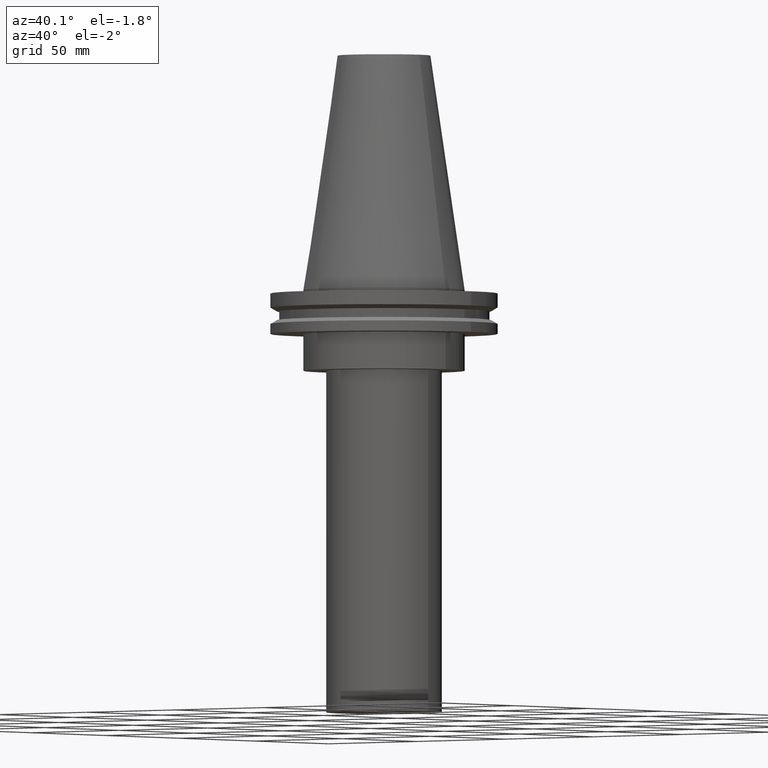
[diagram: clean part render]
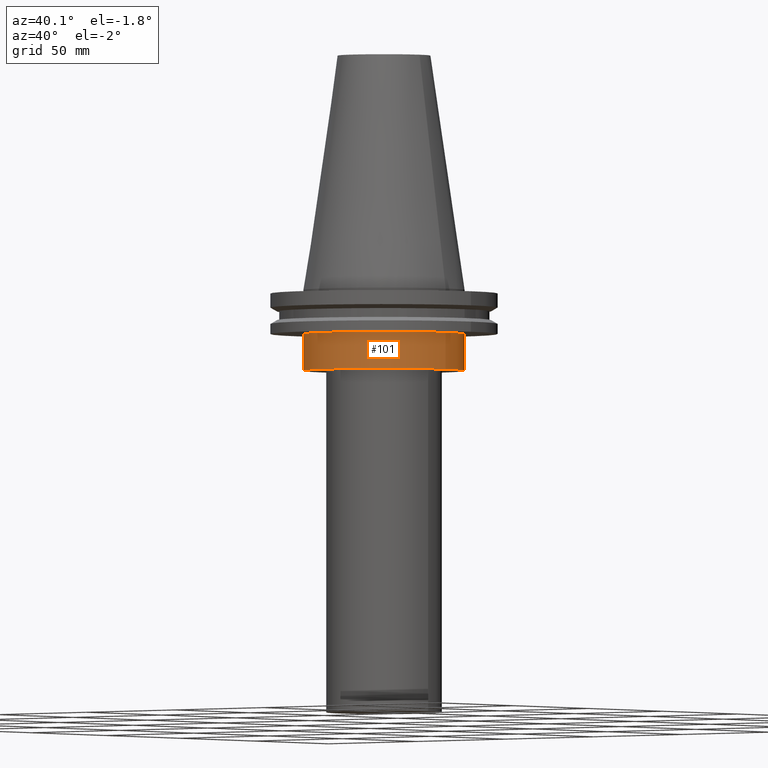
[diagram: same view with one face highlighted and labeled with its STEP entity id]
A machine part, auxiliary view. The second image highlights one B-rep face of the part: STEP entity #101.
In plain terms, the highlighted cylindrical surface (bore or boss wall) has radius 34.925 mm, axis along (-0, -0, 1).
Its self-contained STEP definition (entity closure, byte-faithful):
#2 = AXIS2_PLACEMENT_3D ( 'NONE', #148, #390, #211 ) ;
#67 = DIRECTION ( 'NONE',  ( -0.000000000000000000, -0.000000000000000000, 1.000000000000000000 ) ) ;
#96 = CARTESIAN_POINT ( 'NONE',  ( 0.000000000000000000, 0.000000000000000000, -35.00000000000000000 ) ) ;
#101 = ADVANCED_FACE ( 'NONE', ( #300, #246 ), #151, .T. ) ;
#123 = EDGE_CURVE ( 'NONE', #298, #298, #227, .T. ) ;
#145 = CARTESIAN_POINT ( 'NONE',  ( 34.92499999999999716, 0.000000000000000000, -19.04999999999999716 ) ) ;
#148 = CARTESIAN_POINT ( 'NONE',  ( 0.000000000000000000, 0.000000000000000000, 101.5999999999999943 ) ) ;
#151 = CYLINDRICAL_SURFACE ( 'NONE', #2, 34.92499999999999716 ) ;
#154 = CARTESIAN_POINT ( 'NONE',  ( 0.000000000000000000, 0.000000000000000000, -19.04999999999999716 ) ) ;
#168 = CARTESIAN_POINT ( 'NONE',  ( 34.92499999999999716, 0.000000000000000000, -35.00000000000000000 ) ) ;
#169 = ORIENTED_EDGE ( 'NONE', *, *, #123, .F. ) ;
#176 = EDGE_LOOP ( 'NONE', ( #169 ) ) ;
#207 = DIRECTION ( 'NONE',  ( 1.000000000000000000, 0.000000000000000000, 0.000000000000000000 ) ) ;
#208 = AXIS2_PLACEMENT_3D ( 'NONE', #154, #275, #207 ) ;
#211 = DIRECTION ( 'NONE',  ( 1.000000000000000000, 0.000000000000000000, 0.000000000000000000 ) ) ;
#227 = CIRCLE ( 'NONE', #208, 34.92499999999999716 ) ;
#229 = ORIENTED_EDGE ( 'NONE', *, *, #354, .T. ) ;
#241 = AXIS2_PLACEMENT_3D ( 'NONE', #96, #67, #280 ) ;
#246 = FACE_OUTER_BOUND ( 'NONE', #371, .T. ) ;
#275 = DIRECTION ( 'NONE',  ( -0.000000000000000000, -0.000000000000000000, 1.000000000000000000 ) ) ;
#280 = DIRECTION ( 'NONE',  ( 1.000000000000000000, 0.000000000000000000, 0.000000000000000000 ) ) ;
#298 = VERTEX_POINT ( 'NONE', #145 ) ;
#300 = FACE_OUTER_BOUND ( 'NONE', #176, .T. ) ;
#319 = VERTEX_POINT ( 'NONE', #168 ) ;
#354 = EDGE_CURVE ( 'NONE', #319, #319, #360, .T. ) ;
#360 = CIRCLE ( 'NONE', #241, 34.92499999999999716 ) ;
#371 = EDGE_LOOP ( 'NONE', ( #229 ) ) ;
#390 = DIRECTION ( 'NONE',  ( -0.000000000000000000, -0.000000000000000000, 1.000000000000000000 ) ) ;